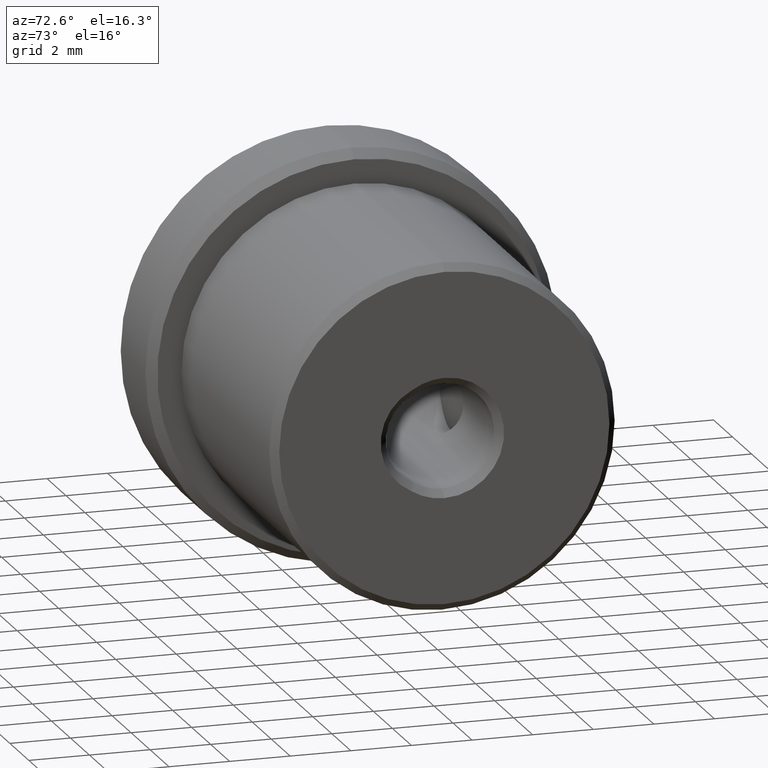
[diagram: clean part render]
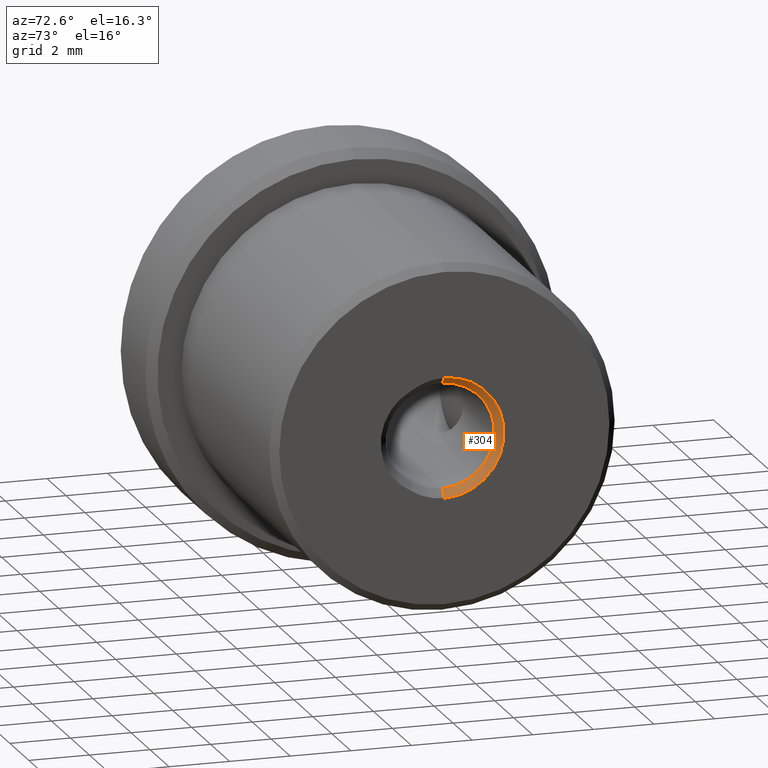
[diagram: same view with one face highlighted and labeled with its STEP entity id]
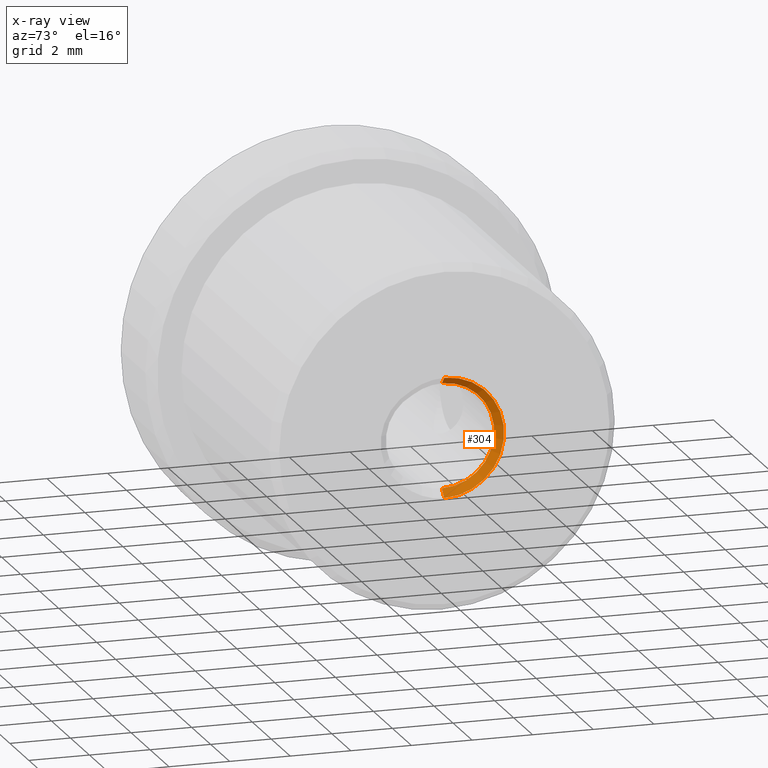
[diagram: x-ray of the same camera — body ghosted, the highlighted face saturated]
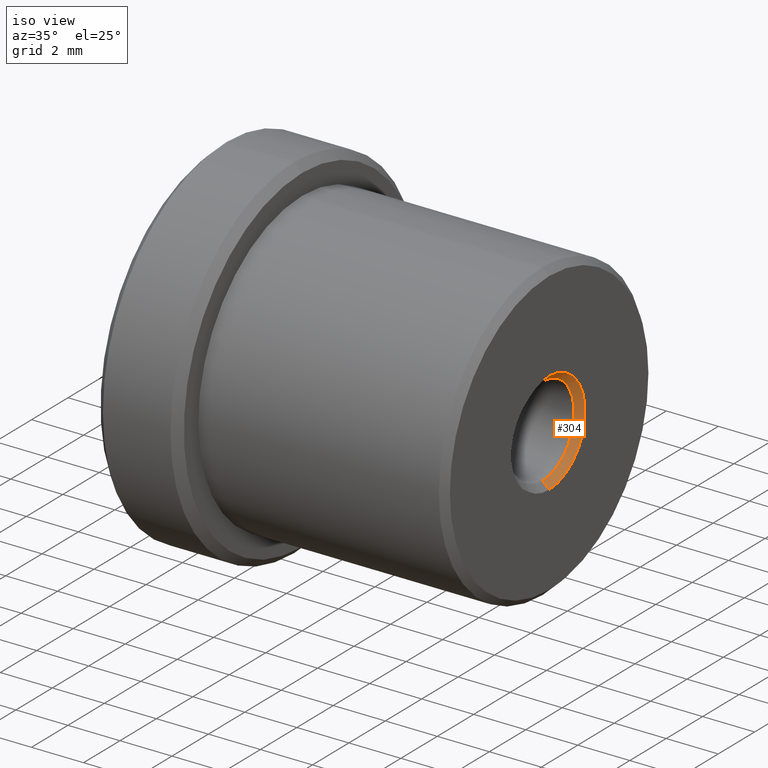
[diagram: same view with one face highlighted and labeled with its STEP entity id]
A machine part, auxiliary view. The second image highlights one B-rep face of the part: STEP entity #304.
The next image is the same camera in x-ray: the body ghosted, the highlighted face saturated — about 0% of this face is hidden behind the body in this view.
A second angle (iso view) of the same face is appended — the face is thin or edge-on in the first view.
In plain terms, the highlighted conical surface has half-angle 45 deg.
Its self-contained STEP definition (entity closure, byte-faithful):
#134 = CIRCLE ( 'NONE', #618, 1.975000000000002753 ) ;
#304 = ADVANCED_FACE ( 'NONE', ( #980 ), #1024, .F. ) ;
#425 = DIRECTION ( 'NONE',  ( 0.000000000000000000, 0.000000000000000000, -1.000000000000000000 ) ) ;
#453 = CARTESIAN_POINT ( 'NONE',  ( 12.69999999999999929, 0.000000000000000000, -1.975000000000002753 ) ) ;
#471 = EDGE_CURVE ( 'NONE', #2293, #2211, #1152, .T. ) ;
#509 = ORIENTED_EDGE ( 'NONE', *, *, #1431, .F. ) ;
#618 = AXIS2_PLACEMENT_3D ( 'NONE', #1391, #1602, #425 ) ;
#632 = ORIENTED_EDGE ( 'NONE', *, *, #1084, .F. ) ;
#744 = CARTESIAN_POINT ( 'NONE',  ( 12.69999999999999929, 0.000000000000000000, -1.975000000000002753 ) ) ;
#789 = ORIENTED_EDGE ( 'NONE', *, *, #471, .T. ) ;
#980 = FACE_OUTER_BOUND ( 'NONE', #2884, .T. ) ;
#1024 = CONICAL_SURFACE ( 'NONE', #2803, 1.975000000000002753, 0.7853981633974496113 ) ;
#1084 = EDGE_CURVE ( 'NONE', #1997, #2211, #134, .T. ) ;
#1148 = CARTESIAN_POINT ( 'NONE',  ( 12.69999999999999929, 2.418677428316025980E-16, 1.975000000000002753 ) ) ;
#1152 = LINE ( 'NONE', #453, #2037 ) ;
#1219 = AXIS2_PLACEMENT_3D ( 'NONE', #1272, #1792, #2227 ) ;
#1272 = CARTESIAN_POINT ( 'NONE',  ( 12.44999999999999751, 0.000000000000000000, 0.000000000000000000 ) ) ;
#1308 = ORIENTED_EDGE ( 'NONE', *, *, #1936, .F. ) ;
#1391 = CARTESIAN_POINT ( 'NONE',  ( 12.69999999999999929, 0.000000000000000000, 0.000000000000000000 ) ) ;
#1398 = DIRECTION ( 'NONE',  ( 0.7071067811865465735, 8.659560562354943952E-17, 0.7071067811865483499 ) ) ;
#1431 = EDGE_CURVE ( 'NONE', #2293, #1583, #2519, .T. ) ;
#1522 = CARTESIAN_POINT ( 'NONE',  ( 12.44999999999999751, 0.000000000000000000, 1.725000000000000089 ) ) ;
#1574 = VECTOR ( 'NONE', #1398, 1000.000000000000114 ) ;
#1583 = VERTEX_POINT ( 'NONE', #1522 ) ;
#1602 = DIRECTION ( 'NONE',  ( -1.000000000000000000, -0.000000000000000000, -0.000000000000000000 ) ) ;
#1792 = DIRECTION ( 'NONE',  ( 1.000000000000000000, -0.000000000000000000, -0.000000000000000000 ) ) ;
#1863 = DIRECTION ( 'NONE',  ( 0.7071067811865465735, 0.000000000000000000, -0.7071067811865483499 ) ) ;
#1936 = EDGE_CURVE ( 'NONE', #1583, #1997, #2615, .T. ) ;
#1948 = DIRECTION ( 'NONE',  ( 1.000000000000000000, -0.000000000000000000, -0.000000000000000000 ) ) ;
#1997 = VERTEX_POINT ( 'NONE', #2214 ) ;
#2037 = VECTOR ( 'NONE', #1863, 1000.000000000000114 ) ;
#2211 = VERTEX_POINT ( 'NONE', #744 ) ;
#2214 = CARTESIAN_POINT ( 'NONE',  ( 12.69999999999999929, 2.418677428316025980E-16, 1.975000000000002753 ) ) ;
#2227 = DIRECTION ( 'NONE',  ( 0.000000000000000000, 0.000000000000000000, -1.000000000000000000 ) ) ;
#2293 = VERTEX_POINT ( 'NONE', #2994 ) ;
#2519 = CIRCLE ( 'NONE', #1219, 1.725000000000000089 ) ;
#2596 = CARTESIAN_POINT ( 'NONE',  ( 12.69999999999999929, 0.000000000000000000, 0.000000000000000000 ) ) ;
#2615 = LINE ( 'NONE', #1148, #1574 ) ;
#2803 = AXIS2_PLACEMENT_3D ( 'NONE', #2596, #1948, #2869 ) ;
#2869 = DIRECTION ( 'NONE',  ( 0.000000000000000000, 0.000000000000000000, -1.000000000000000000 ) ) ;
#2884 = EDGE_LOOP ( 'NONE', ( #1308, #509, #789, #632 ) ) ;
#2994 = CARTESIAN_POINT ( 'NONE',  ( 12.44999999999999751, 2.112515728529184412E-16, -1.725000000000000089 ) ) ;